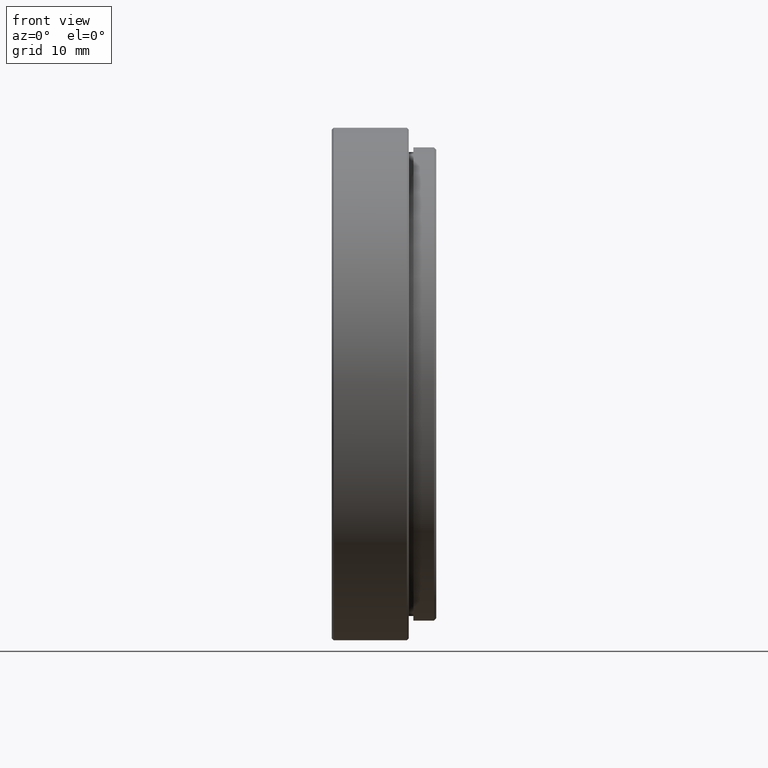
[diagram: clean part render]
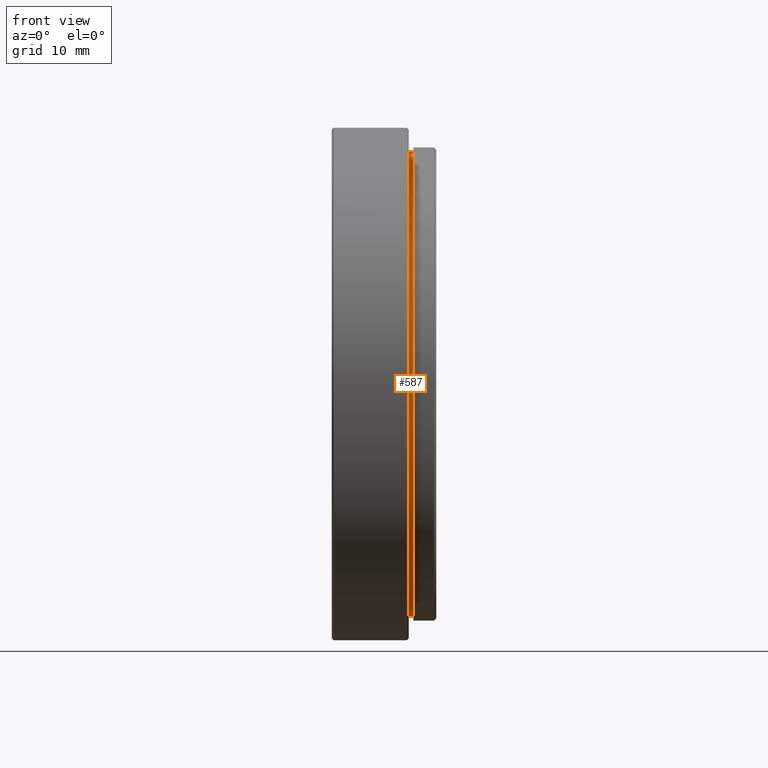
[diagram: same view with one face highlighted and labeled with its STEP entity id]
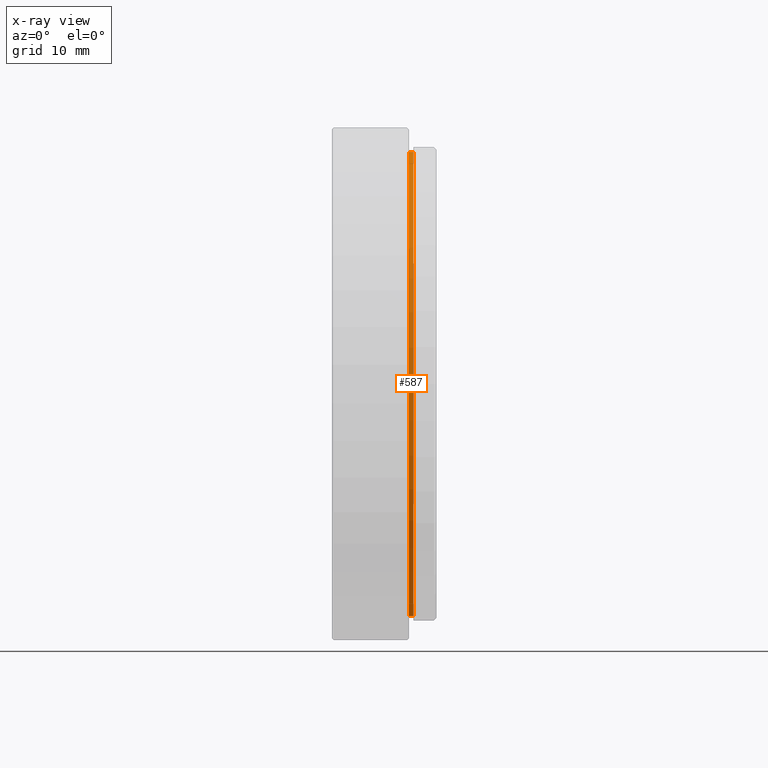
[diagram: x-ray of the same camera — body ghosted, the highlighted face saturated]
A machine part, front view. The second image highlights one B-rep face of the part: STEP entity #587.
The next image is the same camera in x-ray: the body ghosted, the highlighted face saturated — about 0% of this face is hidden behind the body in this view.
In plain terms, the highlighted cylindrical surface (partial cylindrical patch) has radius 25.3 mm, axis along (-1, -0, -0).
Its self-contained STEP definition (entity closure, byte-faithful):
#13 = AXIS2_PLACEMENT_3D ( 'NONE', #805, #697, #196 ) ;
#110 = CARTESIAN_POINT ( 'NONE',  ( 3.525999999999982926, -20.10857142857141966, 25.30000000000000071 ) ) ;
#111 = CARTESIAN_POINT ( 'NONE',  ( 4.025999999999982926, -20.10857142857141611, -25.30000000000000071 ) ) ;
#175 = DIRECTION ( 'NONE',  ( 0.000000000000000000, 0.000000000000000000, -1.000000000000000000 ) ) ;
#196 = DIRECTION ( 'NONE',  ( 0.000000000000000000, 0.000000000000000000, -1.000000000000000000 ) ) ;
#197 = DIRECTION ( 'NONE',  ( -1.000000000000000000, -0.000000000000000000, -0.000000000000000000 ) ) ;
#238 = CARTESIAN_POINT ( 'NONE',  ( 4.025999999999982926, -20.10857142857141611, -25.30000000000000071 ) ) ;
#255 = DIRECTION ( 'NONE',  ( 0.000000000000000000, 0.000000000000000000, 1.000000000000000000 ) ) ;
#259 = EDGE_LOOP ( 'NONE', ( #1458, #1343, #802, #923 ) ) ;
#263 = AXIS2_PLACEMENT_3D ( 'NONE', #1338, #1461, #175 ) ;
#288 = LINE ( 'NONE', #111, #1590 ) ;
#309 = EDGE_CURVE ( 'NONE', #664, #1227, #453, .T. ) ;
#363 = AXIS2_PLACEMENT_3D ( 'NONE', #1659, #1004, #255 ) ;
#453 = CIRCLE ( 'NONE', #263, 25.30000000000000071 ) ;
#587 = ADVANCED_FACE ( 'NONE', ( #1396 ), #610, .T. ) ;
#610 = CYLINDRICAL_SURFACE ( 'NONE', #363, 25.30000000000000071 ) ;
#664 = VERTEX_POINT ( 'NONE', #110 ) ;
#697 = DIRECTION ( 'NONE',  ( 1.000000000000000000, 0.000000000000000000, 0.000000000000000000 ) ) ;
#698 = CARTESIAN_POINT ( 'NONE',  ( 4.025999999999982926, -20.10857142857141966, 25.30000000000000071 ) ) ;
#700 = LINE ( 'NONE', #698, #998 ) ;
#802 = ORIENTED_EDGE ( 'NONE', *, *, #1244, .T. ) ;
#805 = CARTESIAN_POINT ( 'NONE',  ( 4.025999999999982926, -20.10857142857141966, 0.000000000000000000 ) ) ;
#923 = ORIENTED_EDGE ( 'NONE', *, *, #309, .T. ) ;
#998 = VECTOR ( 'NONE', #197, 1000.000000000000000 ) ;
#1004 = DIRECTION ( 'NONE',  ( -1.000000000000000000, -0.000000000000000000, -0.000000000000000000 ) ) ;
#1014 = CIRCLE ( 'NONE', #13, 25.30000000000000071 ) ;
#1056 = CARTESIAN_POINT ( 'NONE',  ( 4.025999999999982926, -20.10857142857141966, 25.30000000000000071 ) ) ;
#1183 = CARTESIAN_POINT ( 'NONE',  ( 3.525999999999982926, -20.10857142857141611, -25.30000000000000071 ) ) ;
#1227 = VERTEX_POINT ( 'NONE', #1183 ) ;
#1244 = EDGE_CURVE ( 'NONE', #1404, #664, #700, .T. ) ;
#1284 = VERTEX_POINT ( 'NONE', #238 ) ;
#1338 = CARTESIAN_POINT ( 'NONE',  ( 3.525999999999982926, -20.10857142857141966, 0.000000000000000000 ) ) ;
#1343 = ORIENTED_EDGE ( 'NONE', *, *, #1406, .F. ) ;
#1371 = DIRECTION ( 'NONE',  ( -1.000000000000000000, -0.000000000000000000, -0.000000000000000000 ) ) ;
#1396 = FACE_OUTER_BOUND ( 'NONE', #259, .T. ) ;
#1404 = VERTEX_POINT ( 'NONE', #1056 ) ;
#1406 = EDGE_CURVE ( 'NONE', #1404, #1284, #1014, .T. ) ;
#1458 = ORIENTED_EDGE ( 'NONE', *, *, #1641, .F. ) ;
#1461 = DIRECTION ( 'NONE',  ( 1.000000000000000000, 0.000000000000000000, 0.000000000000000000 ) ) ;
#1590 = VECTOR ( 'NONE', #1371, 1000.000000000000000 ) ;
#1641 = EDGE_CURVE ( 'NONE', #1284, #1227, #288, .T. ) ;
#1659 = CARTESIAN_POINT ( 'NONE',  ( 4.025999999999982926, -20.10857142857141966, 0.000000000000000000 ) ) ;